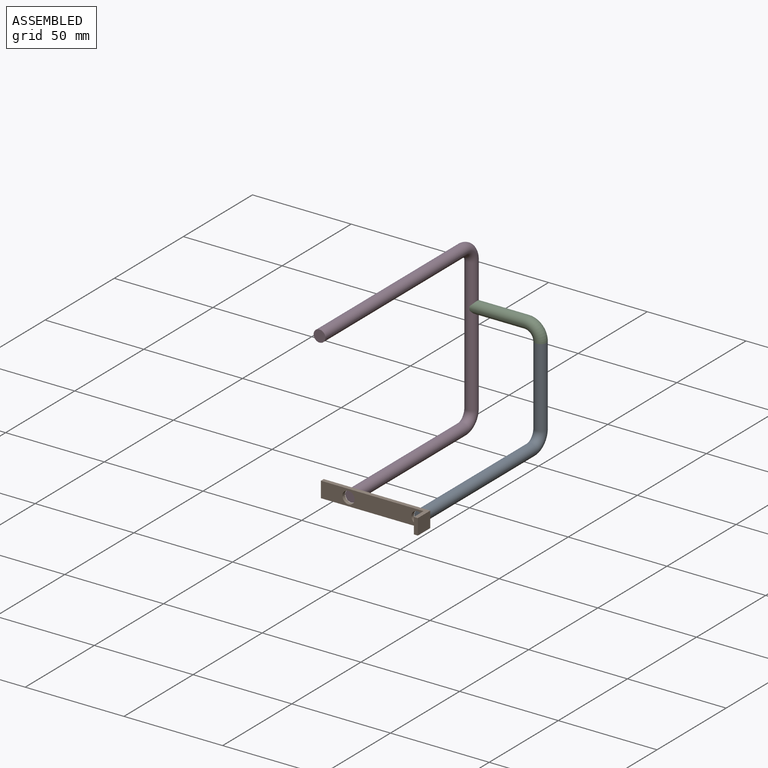
[diagram: assembled view]
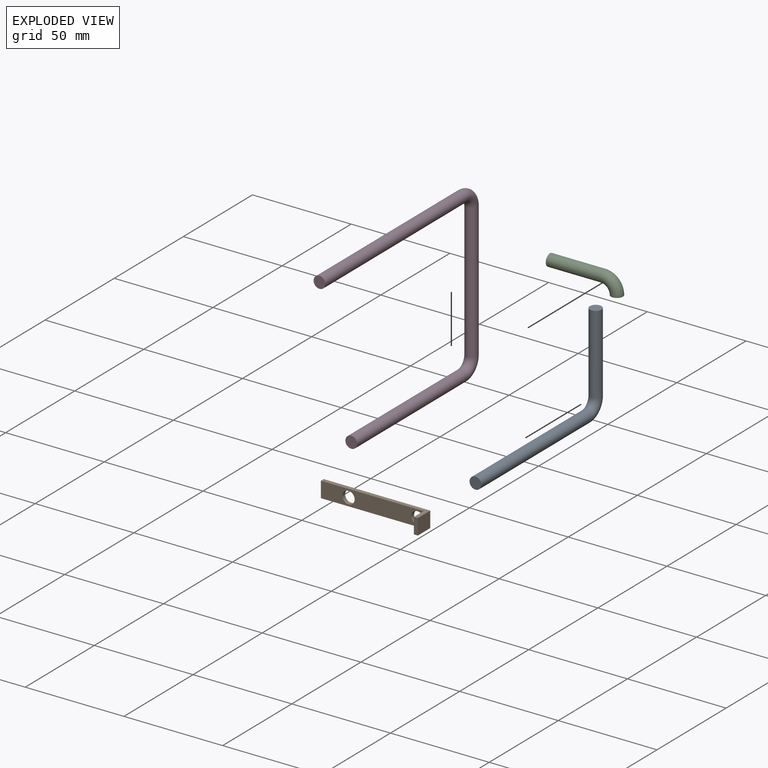
[diagram: exploded view]
GUIDED TOUR — MATED ASSEMBLY (Onshape document 238ef27b56053b04bfc5eaf4, AutoMate assembly 238ef27b56053b04bfc5eaf4_055b771f4867c8a896253528_4bb8f1ac3afc62c8ce9609bb_default)

This assembly has 4 components, labeled P0..P3 below (a component is one placed occurrence of a part; the same part can appear more than once), held together by 3 mates. A mate is a constraint between two components; its type names the relative motion it leaves free:
  FASTENED — locks the two components together rigidly (no relative motion).
Axis/direction vectors are unit vectors and 'through' points are millimeter coordinates, both in the assembly's world frame.

MATES
  1. FASTENED "Fastened 3": P0 <-> P1, direction (0.000, 1.000, 0.000) through (95.87, -79.71, -52.60) mm
  2. FASTENED "Fastened 2": P3 <-> P1, direction (0.000, 1.000, 0.000) through (60.92, -79.71, -52.60) mm
  3. FASTENED "Fastened 1": P2 <-> P0, direction (0.000, 0.000, -1.000) through (95.87, 7.29, -5.60) mm

ASSEMBLY ORDER
  1. P1 — the base component [order verified]
  2. P3 [order verified]
  3. P0 [order verified]
  4. P2 [order verified]
Order-tag legend:
  [order verified] — this step's position reverses a verified removal order: the component was checked to insert without passing through the ones already placed.

Of the 4 components, 4 carry the full construction recipe — the FeatureScript program that regenerates the part's solid from scratch; the rest are supplied as boundary geometry only.
Each toured component is shown spotlighted twice — in the assembled view, then in the exploded view, where a leader line traces a displaced component back to its assembled socket (saturated green if recipe-attached, orange if geometry-only; every other component desaturated gray) — followed by its recipe or geometry summary and the mates that hold it.
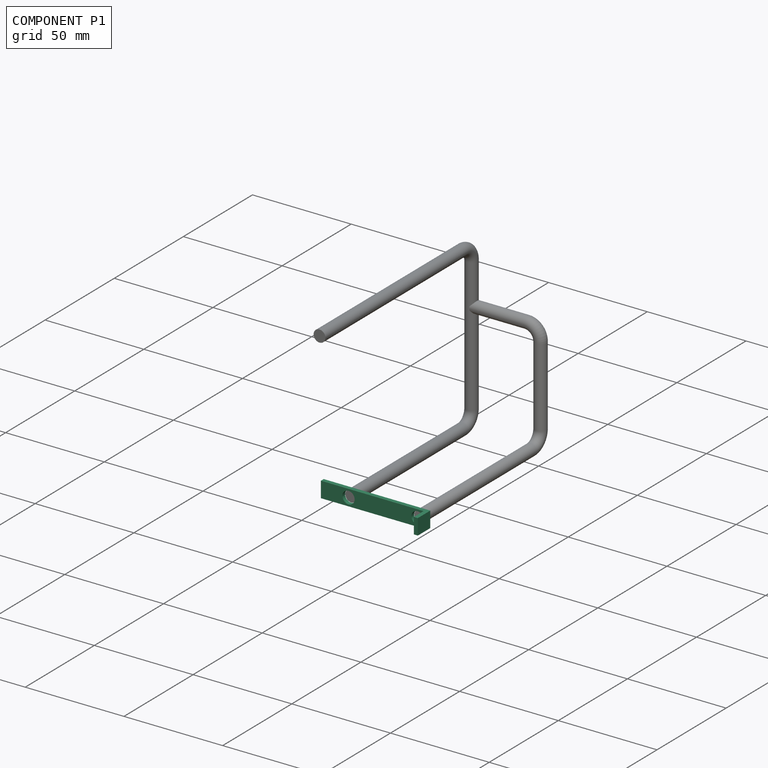
[diagram: component P1 — assembled]
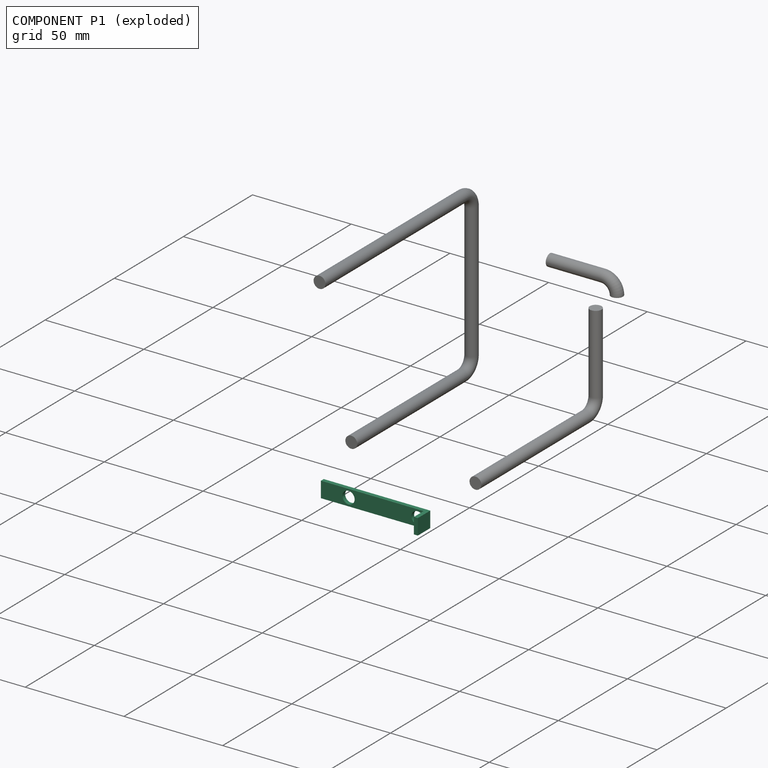
[diagram: component P1 — exploded]
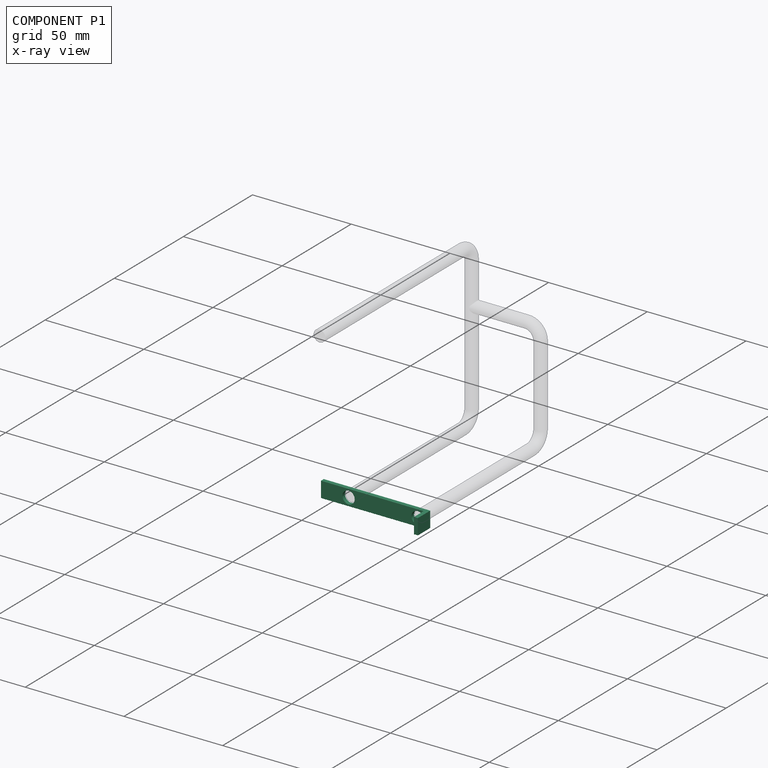
[diagram: component P1 — x-ray view]
COMPONENT P1 — recipe-attached (CADFS 00155810, mesh-verified: the recipe's output STEP matches this component's geometry to below the mesh-comparison resolution (tessellation chordal tolerance ~0.083 mm)).
Held by: FASTENED mate "Fastened 3" to P0; FASTENED mate "Fastened 2" to P3.
Construction recipe (FeatureScript — the CAD program that rebuilds this solid; sketch coordinates are in the units given by the * unit suffixes, e.g. mm):

FeatureScript 1540;
import(path : "onshape/std/geometry.fs", version : "1540.0");
import(path : "onshape/std/common.fs", version : "1540.0");
const mm = millimeter;
const VERTEX = EntityType.VERTEX;
const EDGE = EntityType.EDGE;
const FACE = EntityType.FACE;
const BODY = EntityType.BODY;
function v(x, y){return vector(x, y);}
function OD(order){return orderDisambiguation(order);}
function OSD(set){return originalSetDisambiguation(set);}
function TD(topology){return topologyDisambiguation(topology);}
function TDD(query){return trueDependencyDisambiguation(query);}
function sQuery(a, b, c) {return sketchEntityQuery(a, b, c);}

annotation { "Feature Type Name" : "Feature", "Feature Type Description" : "" }
export const myFeature = defineFeature(function(context is Context, id is Id, definition is map)
    precondition{}
    {
        {
            var Q0;
            Q0=qCreatedBy(makeId("Right.planeOp"),FACE);
            var sketch = newSketch(context, id + "F0", { "sketchPlane" : qUnion([Q0])});
            skLineSegment(sketch, "E0", {"start": v(0, 0) * mm, "end": v(0, -52) * mm});
            skLineSegment(sketch, "E1", {"start": v(0, -52) * mm, "end": v(-2, -52) * mm});
            skLineSegment(sketch, "E2", {"start": v(-2, -52) * mm, "end": v(-2, 2) * mm});
            skLineSegment(sketch, "E3", {"start": v(-2, 2) * mm, "end": v(7, 2) * mm});
            skLineSegment(sketch, "E4", {"start": v(7, 2) * mm, "end": v(7, 0) * mm});
            skLineSegment(sketch, "E5", {"start": v(7, 0) * mm, "end": v(0, 0) * mm});
            skSolve(sketch);
        }
        {
            var Q0;
            Q0 = qSketchRegion(id + "F0", true);
            extrude(context, id + "F1", {"entities" : qUnion([Q0]), "depth" : 8 * mm});
        }
        {
            var Q0;
            Q0=makeQuery(id+"F1.opExtrude","SWEPT_FACE",FACE,{"disambiguationData":[OSD([sQuery(id+"F0.wireOp",EDGE,"E2")])]});
            var sketch = newSketch(context, id + "F2", { "sketchPlane" : qUnion([Q0])});
            skCircle(sketch, "E6", {"center": v(4, -3.07) * mm, "radius": 3.1 * mm});
            skPoint(sketch, "E6.centerSnap0", {"position": v(4, 2) * mm});
            skCircle(sketch, "E7", {"center": v(4, -38.02) * mm, "radius": 3.1 * mm});
            skPoint(sketch, "E7.centerSnap0", {"position": v(4, -52) * mm});
            skSolve(sketch);
        }
        {
            var Q0;
            Q0 = qSketchRegion(id + "F2", true);
            extrude(context, id + "F3", {"entities" : qUnion([Q0]), "operationType" : NewBodyOperationType.REMOVE, "oppositeDirection" : true, "depth" : 25 * mm});
        }
    });
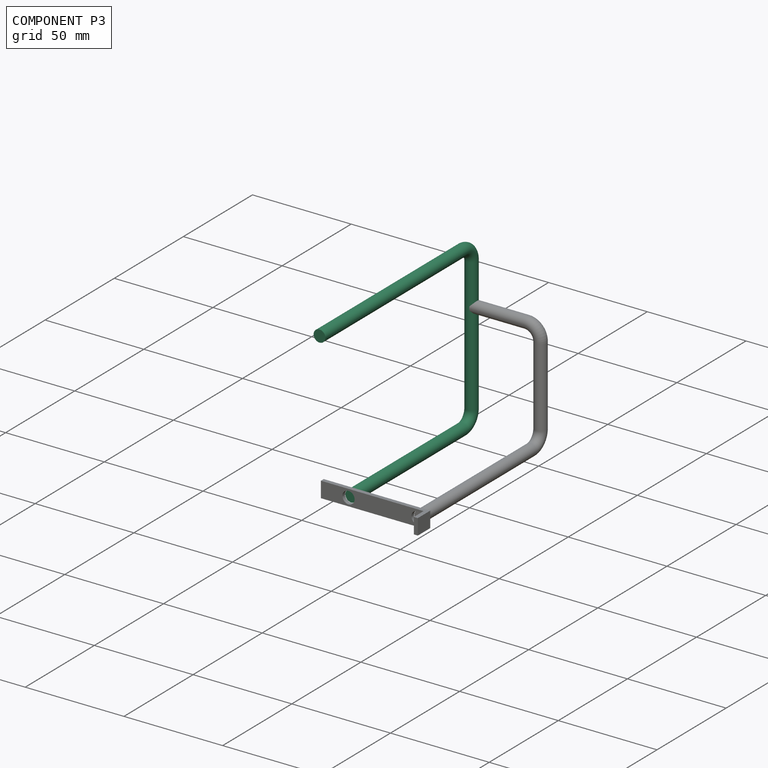
[diagram: component P3 — assembled]
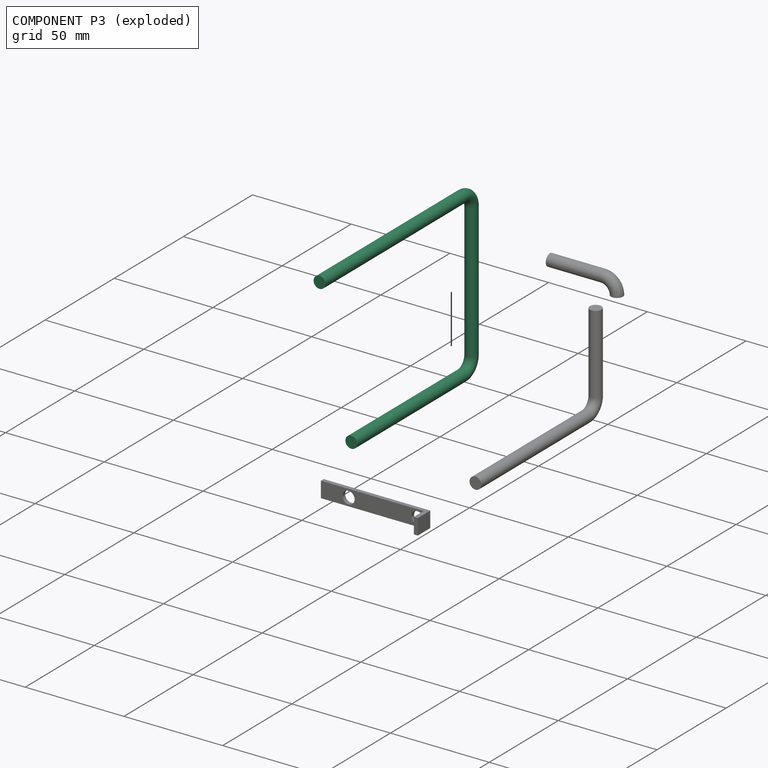
[diagram: component P3 — exploded]
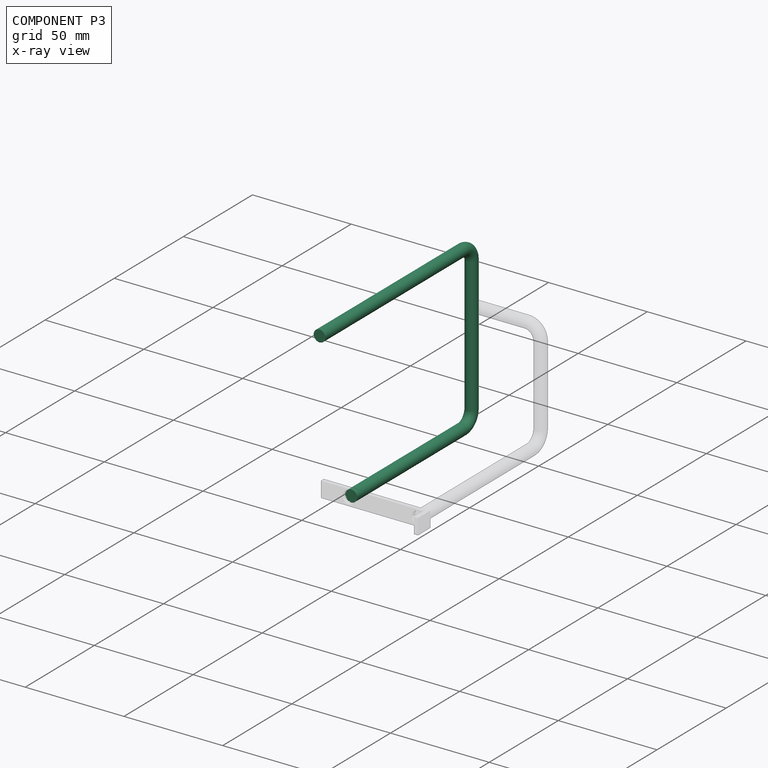
[diagram: component P3 — x-ray view]
COMPONENT P3 — recipe-attached (CADFS 00155806, mesh-verified: the recipe's output STEP matches this component's geometry to below the mesh-comparison resolution (tessellation chordal tolerance ~0.215 mm)).
Held by: FASTENED mate "Fastened 2" to P1.
Construction recipe (FeatureScript — the CAD program that rebuilds this solid; sketch coordinates are in the units given by the * unit suffixes, e.g. mm):

FeatureScript 1540;
import(path : "onshape/std/geometry.fs", version : "1540.0");
import(path : "onshape/std/common.fs", version : "1540.0");
const mm = millimeter;
const VERTEX = EntityType.VERTEX;
const EDGE = EntityType.EDGE;
const FACE = EntityType.FACE;
const BODY = EntityType.BODY;
function v(x, y){return vector(x, y);}
function OD(order){return orderDisambiguation(order);}
function OSD(set){return originalSetDisambiguation(set);}
function TD(topology){return topologyDisambiguation(topology);}
function TDD(query){return trueDependencyDisambiguation(query);}
function sQuery(a, b, c) {return sketchEntityQuery(a, b, c);}

annotation { "Feature Type Name" : "Feature", "Feature Type Description" : "" }
export const myFeature = defineFeature(function(context is Context, id is Id, definition is map)
    precondition{}
    {
        {
            var Q0;
            Q0=qCreatedBy(makeId("Front.planeOp"),FACE);
            var sketch = newSketch(context, id + "F0", { "sketchPlane" : qUnion([Q0])});
            skLineSegment(sketch, "E0", {"start": v(0, 0) * mm, "end": v(80, 0) * mm});
            skArc(sketch, "E1", {"start": v(80, 0) * mm, "mid": v(84.95, 2.05) * mm, "end": v(87, 7) * mm});
            skLineSegment(sketch, "E2", {"start": v(87, 7) * mm, "end": v(87, 75) * mm});
            skArc(sketch, "E3", {"start": v(87, 75) * mm, "mid": v(84.95, 79.95) * mm, "end": v(80, 82) * mm});
            skLineSegment(sketch, "E4", {"start": v(80, 82) * mm, "end": v(-23, 82) * mm});
            skSolve(sketch);
        }
        {
            var Q0;
            Q0=qCreatedBy(makeId("Right.planeOp"),FACE);
            var sketch = newSketch(context, id + "F1", { "sketchPlane" : qUnion([Q0])});
            skCircle(sketch, "E5", {"center": v(0, 0) * mm, "radius": 3 * mm});
            skSolve(sketch);
        }
        {
            var Q0;
            Q0=makeQuery(id+"F1.imprint","IMPRINT",FACE,{"disambiguationData":[TD([[makeQuery(id+"F1.imprint","IMPRINT",EDGE,{"derivedFrom":sQuery(id+"F1.wireOp",EDGE,"E5")}),1.0]])]});
            var Q1;
            Q1=sQuery(id+"F0.wireOp",EDGE,"E4");
            var Q2;
            Q2=sQuery(id+"F0.wireOp",EDGE,"E0");
            var Q3;
            Q3=sQuery(id+"F0.wireOp",EDGE,"E1");
            var Q4;
            Q4=sQuery(id+"F0.wireOp",EDGE,"E2");
            var Q5;
            Q5=sQuery(id+"F0.wireOp",EDGE,"E3");
            sweep(context, id + "F2", {"profiles" : qUnion([Q0]), "path" : qUnion([Q1, Q2, Q3, Q4, Q5])});
        }
    });
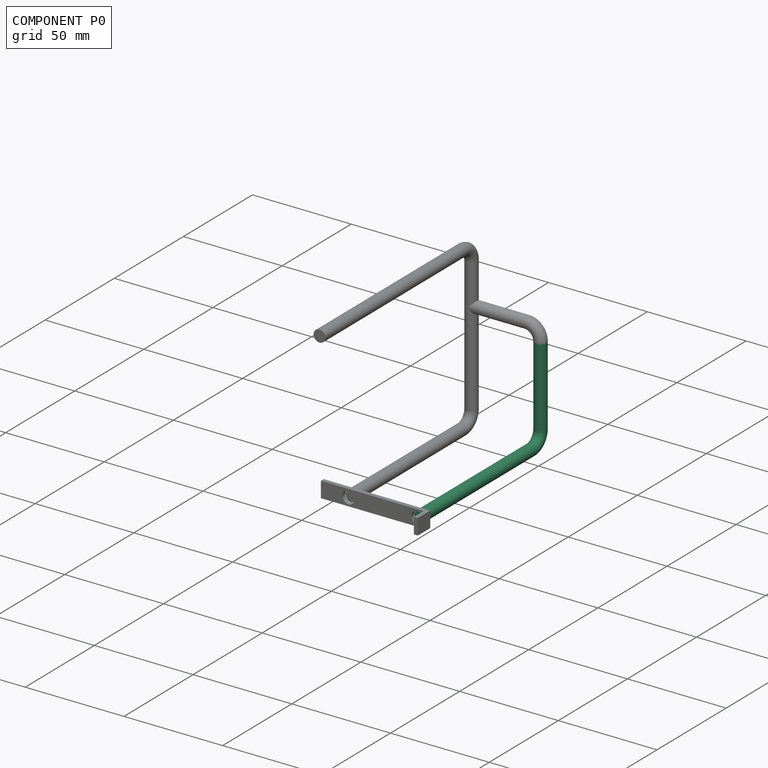
[diagram: component P0 — assembled]
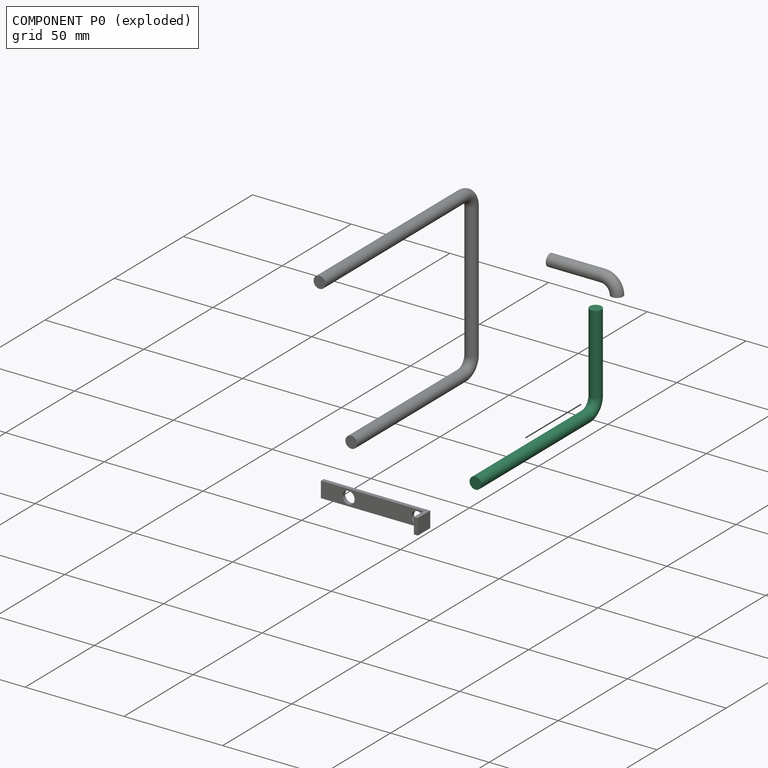
[diagram: component P0 — exploded]
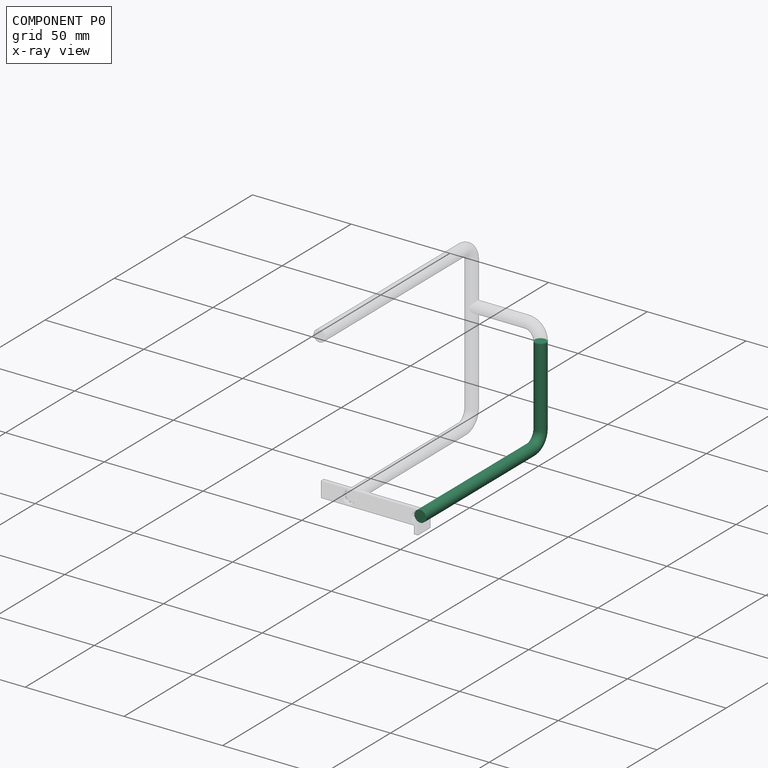
[diagram: component P0 — x-ray view]
COMPONENT P0 — recipe-attached (CADFS 00155808, mesh-verified: the recipe's output STEP matches this component's geometry to below the mesh-comparison resolution (tessellation chordal tolerance ~0.155 mm)).
Held by: FASTENED mate "Fastened 3" to P1; FASTENED mate "Fastened 1" to P2.
Construction recipe (FeatureScript — the CAD program that rebuilds this solid; sketch coordinates are in the units given by the * unit suffixes, e.g. mm):

FeatureScript 1540;
import(path : "onshape/std/geometry.fs", version : "1540.0");
import(path : "onshape/std/common.fs", version : "1540.0");
const mm = millimeter;
const VERTEX = EntityType.VERTEX;
const EDGE = EntityType.EDGE;
const FACE = EntityType.FACE;
const BODY = EntityType.BODY;
function v(x, y){return vector(x, y);}
function OD(order){return orderDisambiguation(order);}
function OSD(set){return originalSetDisambiguation(set);}
function TD(topology){return topologyDisambiguation(topology);}
function TDD(query){return trueDependencyDisambiguation(query);}
function sQuery(a, b, c) {return sketchEntityQuery(a, b, c);}

annotation { "Feature Type Name" : "Feature", "Feature Type Description" : "" }
export const myFeature = defineFeature(function(context is Context, id is Id, definition is map)
    precondition{}
    {
        {
            var Q0;
            Q0=qCreatedBy(makeId("Front.planeOp"),FACE);
            var sketch = newSketch(context, id + "F0", { "sketchPlane" : qUnion([Q0])});
            skLineSegment(sketch, "E0", {"start": v(0, 0) * mm, "end": v(80, 0) * mm});
            skArc(sketch, "E1", {"start": v(80, 0) * mm, "mid": v(84.95, 2.05) * mm, "end": v(87, 7) * mm});
            skLineSegment(sketch, "E2", {"start": v(87, 7) * mm, "end": v(87, 47) * mm});
            skSolve(sketch);
        }
        {
            var Q0;
            Q0=qCreatedBy(makeId("Right.planeOp"),FACE);
            var sketch = newSketch(context, id + "F1", { "sketchPlane" : qUnion([Q0])});
            skCircle(sketch, "E3", {"center": v(0, 0) * mm, "radius": 3 * mm});
            skSolve(sketch);
        }
        {
            var Q0;
            Q0=makeQuery(id+"F1.imprint","IMPRINT",FACE,{"disambiguationData":[TD([[makeQuery(id+"F1.imprint","IMPRINT",EDGE,{"derivedFrom":sQuery(id+"F1.wireOp",EDGE,"E3")}),1.0]])]});
            var Q1;
            Q1=sQuery(id+"F0.wireOp",EDGE,"ev8xvnma-Kx5n-LJW8-0ofH-jus9e5lSajr3");
            var Q2;
            Q2=sQuery(id+"F0.wireOp",EDGE,"E0");
            var Q3;
            Q3=sQuery(id+"F0.wireOp",EDGE,"E1");
            var Q4;
            Q4=sQuery(id+"F0.wireOp",EDGE,"E2");
            var Q5;
            Q5=sQuery(id+"F0.wireOp",EDGE,"2TiX2ViZ-t8sK-9hUQ-MlfC-gPFm1rc3iv9g");
            sweep(context, id + "F2", {"profiles" : qUnion([Q0]), "path" : qUnion([Q1, Q2, Q3, Q4, Q5])});
        }
    });
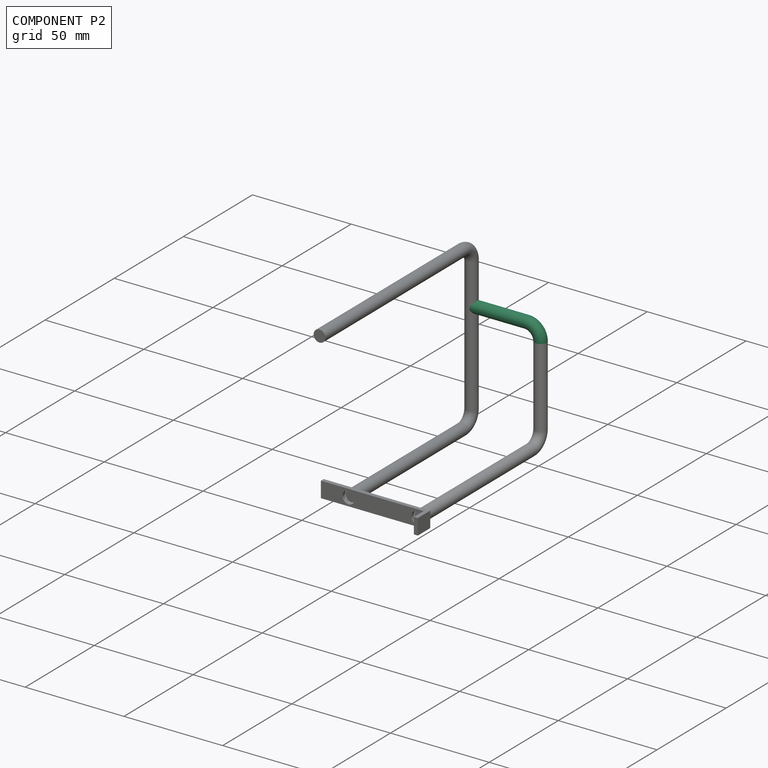
[diagram: component P2 — assembled]
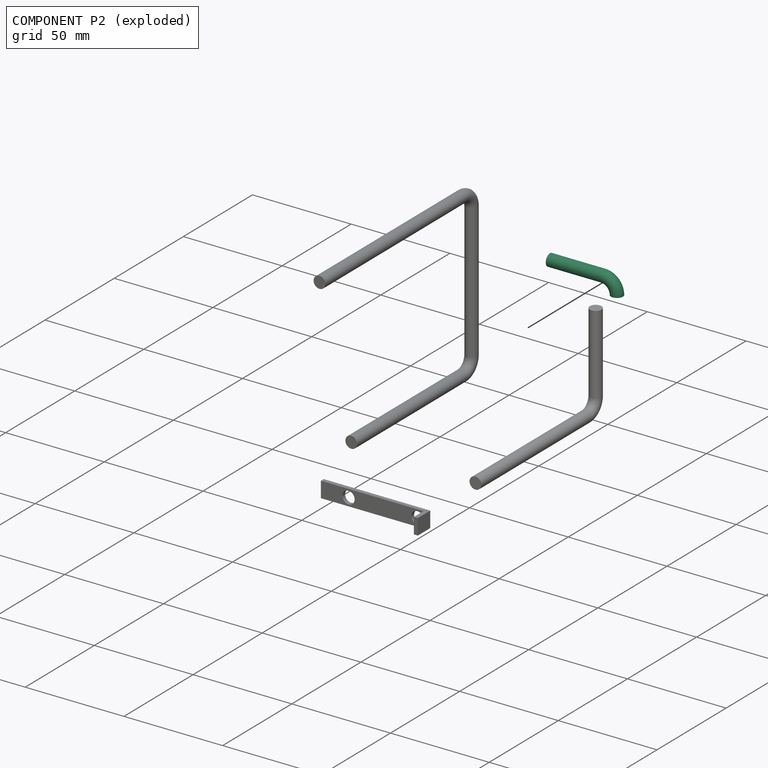
[diagram: component P2 — exploded]
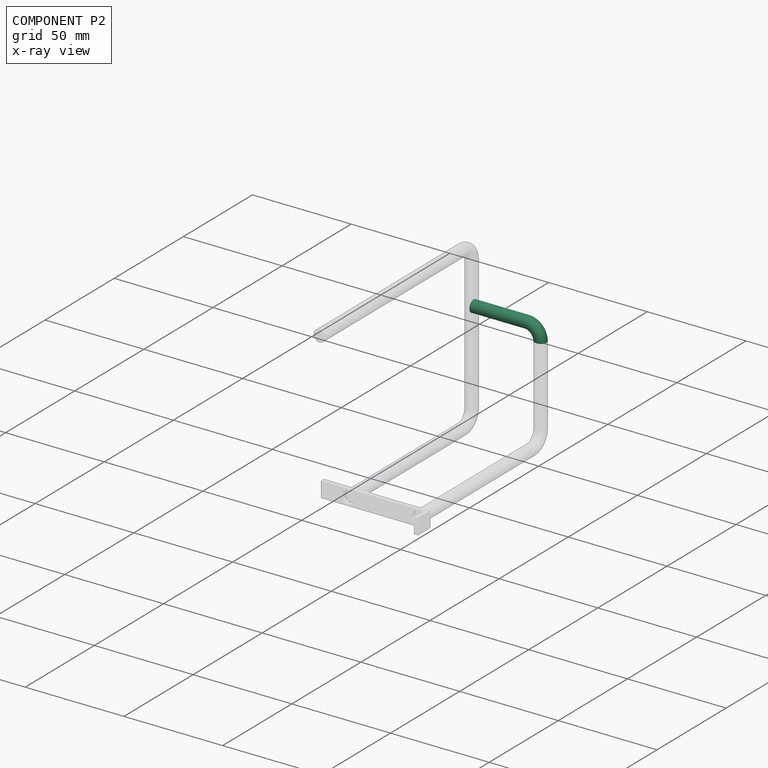
[diagram: component P2 — x-ray view]
COMPONENT P2 — recipe-attached (CADFS 00155809, mesh-verified: the recipe's output STEP matches this component's geometry to below the mesh-comparison resolution (tessellation chordal tolerance ~0.0582 mm)).
Held by: FASTENED mate "Fastened 1" to P0.
Construction recipe (FeatureScript — the CAD program that rebuilds this solid; sketch coordinates are in the units given by the * unit suffixes, e.g. mm):

FeatureScript 1540;
import(path : "onshape/std/geometry.fs", version : "1540.0");
import(path : "onshape/std/common.fs", version : "1540.0");
const mm = millimeter;
const VERTEX = EntityType.VERTEX;
const EDGE = EntityType.EDGE;
const FACE = EntityType.FACE;
const BODY = EntityType.BODY;
function v(x, y){return vector(x, y);}
function OD(order){return orderDisambiguation(order);}
function OSD(set){return originalSetDisambiguation(set);}
function TD(topology){return topologyDisambiguation(topology);}
function TDD(query){return trueDependencyDisambiguation(query);}
function sQuery(a, b, c) {return sketchEntityQuery(a, b, c);}

annotation { "Feature Type Name" : "Feature", "Feature Type Description" : "" }
export const myFeature = defineFeature(function(context is Context, id is Id, definition is map)
    precondition{}
    {
        {
            var Q0;
            Q0=qCreatedBy(makeId("Front.planeOp"),FACE);
            var sketch = newSketch(context, id + "F0", { "sketchPlane" : qUnion([Q0])});
            skLineSegment(sketch, "E0", {"start": v(0, 0) * mm, "end": v(27, 0) * mm});
            skArc(sketch, "E1", {"start": v(27, 0) * mm, "mid": v(31.95, 2.05) * mm, "end": v(34, 7) * mm});
            skSolve(sketch);
        }
        {
            var Q0;
            Q0=qCreatedBy(makeId("Right.planeOp"),FACE);
            var sketch = newSketch(context, id + "F1", { "sketchPlane" : qUnion([Q0])});
            skCircle(sketch, "E2", {"center": v(0, 0) * mm, "radius": 3 * mm});
            skSolve(sketch);
        }
        {
            var Q0;
            Q0=makeQuery(id+"F1.imprint","IMPRINT",FACE,{"disambiguationData":[TD([[makeQuery(id+"F1.imprint","IMPRINT",EDGE,{"derivedFrom":sQuery(id+"F1.wireOp",EDGE,"E2")}),1.0]])]});
            var Q1;
            Q1=sQuery(id+"F0.wireOp",EDGE,"ev8xvnma-Kx5n-LJW8-0ofH-jus9e5lSajr3");
            var Q2;
            Q2=sQuery(id+"F0.wireOp",EDGE,"E0");
            var Q3;
            Q3=sQuery(id+"F0.wireOp",EDGE,"E1");
            var Q4;
            Q4=sQuery(id+"F0.wireOp",EDGE,"Uknd1tQH-TghJ-cEOa-DVhq-kFCsb7NGiCwg");
            var Q5;
            Q5=sQuery(id+"F0.wireOp",EDGE,"2TiX2ViZ-t8sK-9hUQ-MlfC-gPFm1rc3iv9g");
            sweep(context, id + "F2", {"profiles" : qUnion([Q0]), "path" : qUnion([Q1, Q2, Q3, Q4, Q5])});
        }
    });
PROVENANCE & LICENSES
Assembly (occurrences, transforms, mates, per-part STEP geometry): AutoMate dataset, Zenodo record 7776208, CC0.
Construction recipes: CADFS (HuggingFace VladPyatov/CADFS, CC-BY-4.0, layered over the ABC dataset), FeatureScript reconstruction programs keyed by ABC model id.
Join: ABC meta listings map ABC model id -> Onshape documentId; within a shared document, parts are matched by geometric signature (bounding-box dims + volume at 0.1% relative tolerance, exact B-rep face/solid counts).
Verification: 4 of this assembly's 4 components carry a recipe attachment, and every attachment is mesh-verified: the CADFS STEP and the AutoMate member STEP were compared as meshes in their shared local frame (symmetric sampled-point-to-mesh distance); worst across the 4 attachments: below the mesh-comparison resolution (tessellation chordal tolerance ~0.215 mm) on a 143 mm part.
Renders: orthographic iso camera (az 35 / el 25); the floor grid conveys scale (grid pitch printed in each image; no ruler). In the exploded view each component is displaced by its stored offset vector: the offsets alone carry the explosion direction (mate normal/axis signs are not orientation cues and do not encode it), and separation distances are assigned per mate-chain, not proportionally to assembly-order depth.
